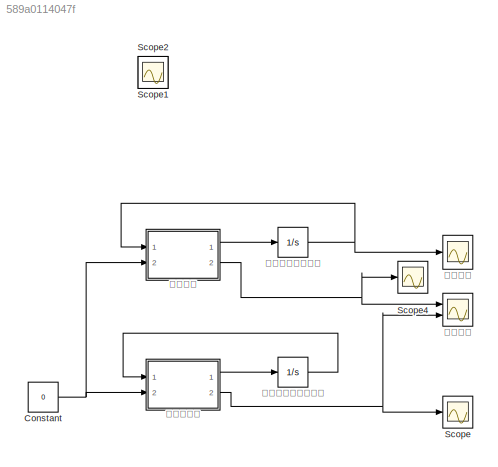
MODEL slx_589a0114047f
KIND model
CONFIG AbsTol = auto
CONFIG EnableMultiTasking = off
CONFIG FixedStep = auto
CONFIG MaxStep = 1e-3
CONFIG MinStep = auto
CONFIG RelTol = 1e-3
CONFIG SampleTimeConstraint = Unconstrained
CONFIG SolverName = VariableStepAuto
CONFIG StartTime = 0.0
CONFIG StopTime = 50
BLOCK [Constant] Constant
  Value = 0
BLOCK [Scope] Scope
  Floating = off
  NumInputPorts = 1
  Ports = [1]
  ScopeSpecificationString = Simulink.scopes.TimeScopeBlockCfg('CurrentConfiguration', extmgr.ConfigurationSet(extmgr.Configuration('Core','General UI',true,'FigureColor',[1 1 1]),extmgr.Configuration('Core','Source UI',true),extmgr.Configuration('Sources','WiredSimulink',true,'DataLoggingVariableName','ScopeData1'),extmgr.Configuration('Visuals','Time Domain',true,'SerializedDisplays',{struct('MinYLimReal','-0.05636','MaxYLi...<+1690ch>
BLOCK [Scope] Scope1
  Floating = off
  IOType = viewer
  NumInputPorts = 1
  Ports = []
  ScopeSpecificationString = Simulink.scopes.TimeScopeBlockCfg('CurrentConfiguration', extmgr.ConfigurationSet(extmgr.Configuration('Core','General UI',true),extmgr.Configuration('Core','Source UI',true),extmgr.Configuration('Sources','WiredSimulink',true,'DataLoggingVariableName','ScopeData1'),extmgr.Configuration('Visuals','Time Domain',true,'SerializedDisplays',{struct('MinYLimReal','-87622384671420982952724104588040339456...<+1731ch>
BLOCK [Scope] Scope2
  Floating = off
  IOType = viewer
  NumInputPorts = 1
  Ports = []
  ScopeSpecificationString = Simulink.scopes.TimeScopeBlockCfg('CurrentConfiguration', extmgr.ConfigurationSet(extmgr.Configuration('Core','General UI',true,'FigureColor',[1 1 1]),extmgr.Configuration('Core','Source UI',true),extmgr.Configuration('Sources','WiredSimulink',true,'DataLoggingVariableName','ScopeData2'),extmgr.Configuration('Visuals','Time Domain',true,'SerializedDisplays',{struct('MinYLimReal','-3.12372','MaxYLi...<+2043ch>
BLOCK [Scope] Scope4
  Floating = off
  NumInputPorts = 1
  Ports = [1]
  ScopeSpecificationString = Simulink.scopes.TimeScopeBlockCfg('CurrentConfiguration', extmgr.ConfigurationSet(extmgr.Configuration('Core','General UI',true,'FigureColor',[1 1 1]),extmgr.Configuration('Core','Source UI',true),extmgr.Configuration('Sources','WiredSimulink',true,'DataLoggingVariableName','ScopeData3'),extmgr.Configuration('Visuals','Time Domain',true,'SerializedDisplays',{struct('MinYLimReal','-1718418722058385...<+2459ch>
BLOCK [Scope] 状态比较
  Floating = off
  NumInputPorts = 1
  Ports = [1]
  ScopeSpecificationString = Simulink.scopes.TimeScopeBlockCfg('CurrentConfiguration', extmgr.ConfigurationSet(extmgr.Configuration('Core','General UI',true,'FigureColor',[1 1 1]),extmgr.Configuration('Core','Source UI',true),extmgr.Configuration('Sources','WiredSimulink',true,'DataLoggingVariableName','ScopeData1'),extmgr.Configuration('Visuals','Time Domain',true,'SerializedDisplays',{struct('MinYLimReal','-4166980716182825...<+2220ch>
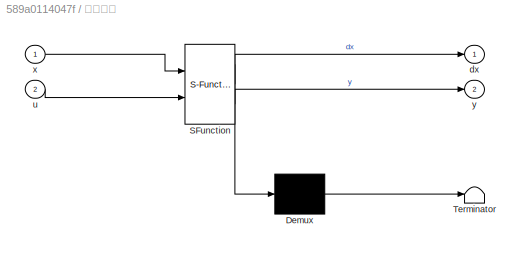
BLOCK [SubSystem] 线性系统
  ErrorFcn = Stateflow.Translate.translate
  PermitHierarchicalResolution = ExplicitOnly
  Ports = [2, 2]
  RequestExecContextInheritance = off
  SFBlockType = MATLAB Function
  TreatAsAtomicUnit = on
BLOCK [Demux] 线性系统/ Demux 
  Outputs = 1
  Ports = [1, 1]
BLOCK [S-Function] 线性系统/ SFunction 
  EnableBusSupport = on
  FunctionName = sf_sfun
  PortCounts = [2 3]
  Ports = [2, 3]
  SFcnIsStateOwnerBlock = off
  SFunctionDeploymentMode = off
  Tag = Stateflow S-Function 1
BLOCK [Terminator] 线性系统/ Terminator 
BLOCK [Outport] 线性系统/dx
BLOCK [Inport] 线性系统/u
  Port = 2
BLOCK [Inport] 线性系统/x
BLOCK [Outport] 线性系统/y
  Port = 2
BLOCK [Integrator] 线性系统状态变量
  InitialCondition = [0 0 0.01 0]
  Ports = [1, 1]
BLOCK [Scope] 输出比较
  Floating = off
  NumInputPorts = 2
  Ports = [2]
  ScopeSpecificationString = Simulink.scopes.TimeScopeBlockCfg('CurrentConfiguration', extmgr.ConfigurationSet(extmgr.Configuration('Core','General UI',true),extmgr.Configuration('Core','Source UI',true),extmgr.Configuration('Sources','WiredSimulink',true,'DataLoggingVariableName','ScopeData1'),extmgr.Configuration('Visuals','Time Domain',true,'SerializedDisplays',{struct('MinYLimReal','-16658670459846361870130207808273362817...<+3905ch>
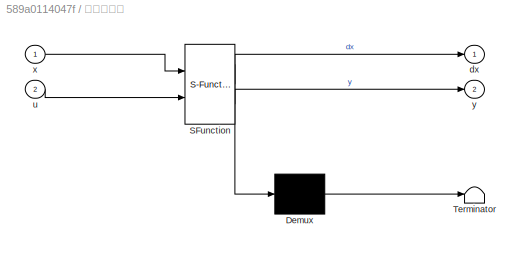
BLOCK [SubSystem] 非线性系统
  ErrorFcn = Stateflow.Translate.translate
  PermitHierarchicalResolution = ExplicitOnly
  Ports = [2, 2]
  RequestExecContextInheritance = off
  SFBlockType = MATLAB Function
  TreatAsAtomicUnit = on
BLOCK [Demux] 非线性系统/ Demux 
  Outputs = 1
  Ports = [1, 1]
BLOCK [S-Function] 非线性系统/ SFunction 
  EnableBusSupport = on
  FunctionName = sf_sfun
  PortCounts = [2 3]
  Ports = [2, 3]
  SFcnIsStateOwnerBlock = off
  SFunctionDeploymentMode = off
  Tag = Stateflow S-Function 2
BLOCK [Terminator] 非线性系统/ Terminator 
BLOCK [Outport] 非线性系统/dx
BLOCK [Inport] 非线性系统/u
  Port = 2
BLOCK [Inport] 非线性系统/x
BLOCK [Outport] 非线性系统/y
  Port = 2
BLOCK [Integrator] 非线性系统状态变量
  InitialCondition = [0 0 0.01 0]
  Ports = [1, 1]
NET Constant:1 -> 线性系统:2, 非线性系统:2
LINE 线性系统:1 -> 线性系统状态变量:1
NET 线性系统:2 -> Scope4:1, 输出比较:1
NET 线性系统状态变量:1 -> 状态比较:1, 线性系统:1
LINE 非线性系统:1 -> 非线性系统状态变量:1
NET 非线性系统:2 -> Scope:1, 输出比较:2
LINE 非线性系统状态变量:1 -> 非线性系统:1
note: NET lines group one-source signal fan-out (src -> all destinations, sorted); 1:1 wires keep LINE
CHART 非线性系统 states=1 transitions=1
  STATE_LABEL 'eML_blk_kernel()'
  STATE_LABEL 'SCRIPT:\n% function [dx,y] = fcn(x,u)\n% M = 1;\n% m = 0.1;\n% l = 0.5;\n% g = 9.8;\n% x1=x(1);\n% x2=x(2);\n% x3=x(3);\n% x4=x(4);\n% \n% dx1 = x2;\n% dx2 =(u + m*l*x4*x4*sin(x3) - m*g*sin(x3)*cos(x3))/(M + m - m*cos(x3)*cos(x3));\n% dx3 = x4;\n% dx4 =(-u*cos(x3) + (M+m)*g*sin(x3) - m*l*x4*x4*sin(x3)*cos(x3))/((M+m)*l - m*l*cos(x3)*cos(x3));\n% dx = [dx1;dx2;dx3;dx4];\n% y=x1;\n\nfunction [dx,y] = fcn(x,u) %非线性系统模...<+278ch>'
CHART 线性系统 states=1 transitions=1
  STATE_LABEL 'eML_blk_kernel()'
  STATE_LABEL 'SCRIPT:\nfunction [dx,y] = fcn(x,u)%线性系统模型\ndx = zeros(4,1);\nM = 1;\nm = 0.1;\nl = 0.5;\ng = 9.8;\ndx(1) = x(2);\ndx(2) = -m*g*x(3)/M+u/M;\ndx(3) = x(4);\ndx(4) = (M+m)*g*x(3)/(M*l)-u/(M*l);\ny = x(1);'
CHART  states=0 transitions=0
CHART  states=0 transitions=0
